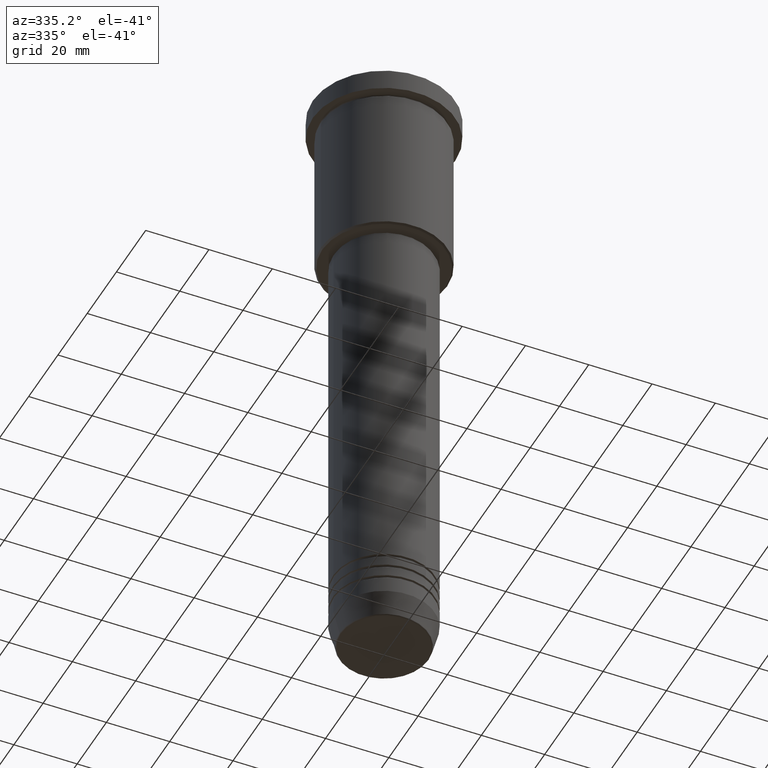
[diagram: clean part render]
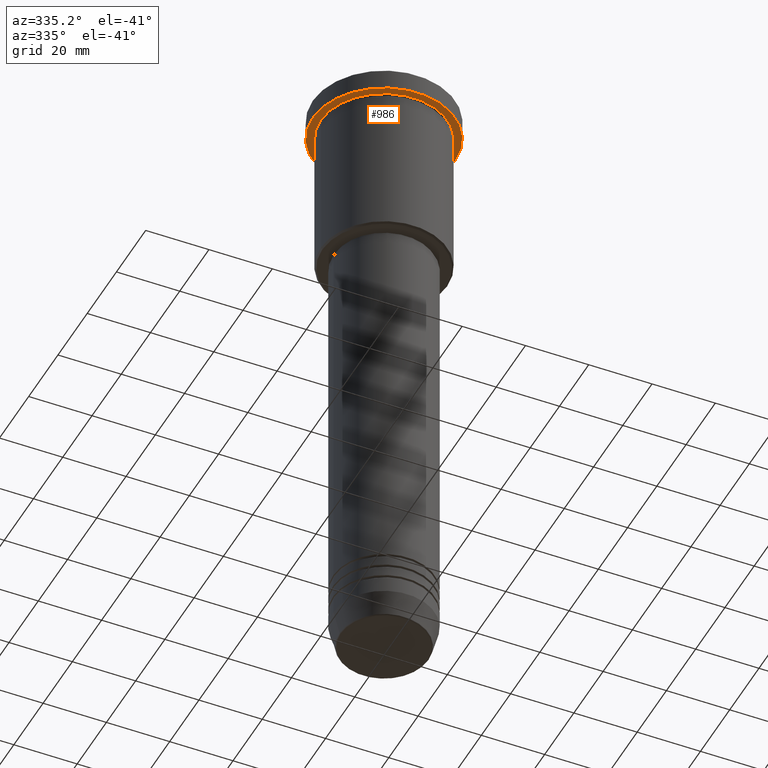
[diagram: same view with one face highlighted and labeled with its STEP entity id]
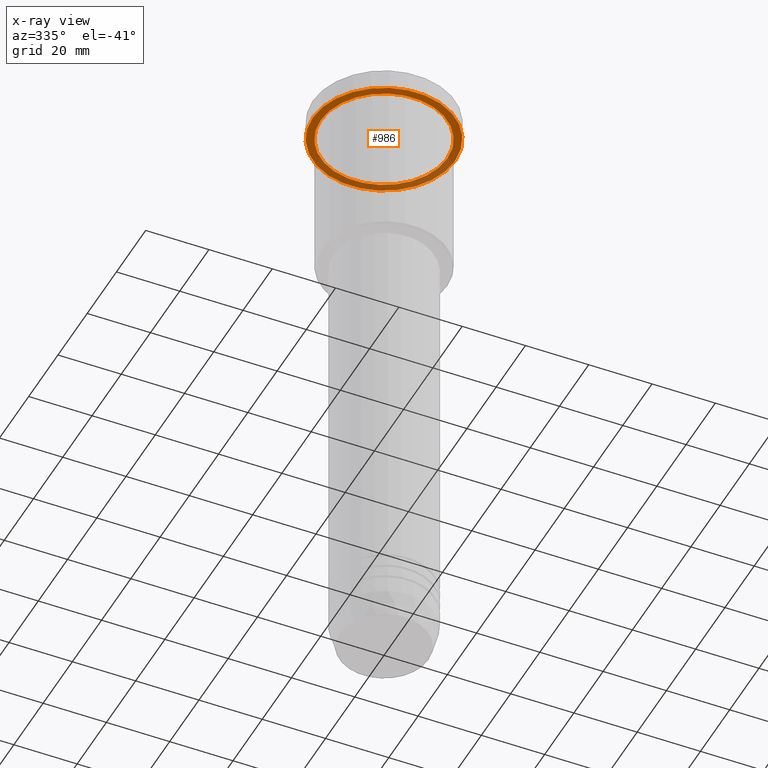
[diagram: x-ray of the same camera — body ghosted, the highlighted face saturated]
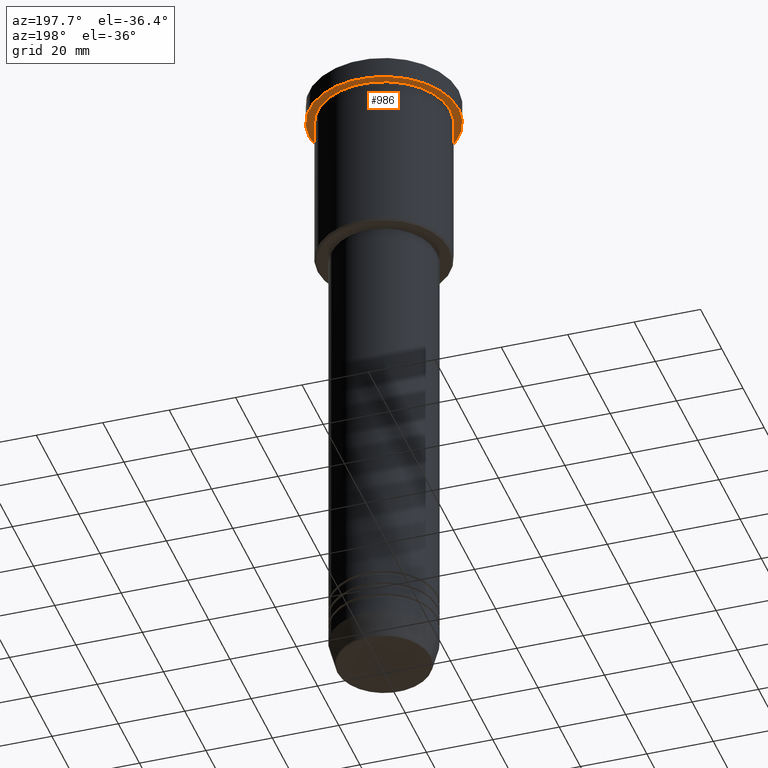
[diagram: same view with one face highlighted and labeled with its STEP entity id]
A machine part, auxiliary view. The second image highlights one B-rep face of the part: STEP entity #986.
The next image is the same camera in x-ray: the body ghosted, the highlighted face saturated — about 36% of this face is hidden behind the body in this view.
A second angle (auxiliary view) of the same face is appended — the face is thin or edge-on in the first view.
In plain terms, the highlighted planar face has unit normal (0, 0, -1).
Its self-contained STEP definition (entity closure, byte-faithful):
#21 = ORIENTED_EDGE ( 'NONE', *, *, #1089, .T. ) ;
#61 = AXIS2_PLACEMENT_3D ( 'NONE', #523, #619, #519 ) ;
#63 = VERTEX_POINT ( 'NONE', #74 ) ;
#65 = EDGE_CURVE ( 'NONE', #174, #63, #155, .T. ) ;
#70 = DIRECTION ( 'NONE',  ( 1.000000000000000000, 0.000000000000000000, 0.000000000000000000 ) ) ;
#74 = CARTESIAN_POINT ( 'NONE',  ( 22.50000000000000000, 0.000000000000000000, -6.999999999999995559 ) ) ;
#78 = EDGE_CURVE ( 'NONE', #63, #174, #728, .T. ) ;
#92 = CARTESIAN_POINT ( 'NONE',  ( -20.00000000000000000, 0.000000000000000000, -6.999999999999995559 ) ) ;
#107 = CARTESIAN_POINT ( 'NONE',  ( 0.000000000000000000, 0.000000000000000000, -6.999999999999995559 ) ) ;
#155 = CIRCLE ( 'NONE', #61, 22.50000000000000000 ) ;
#166 = ORIENTED_EDGE ( 'NONE', *, *, #397, .T. ) ;
#174 = VERTEX_POINT ( 'NONE', #1122 ) ;
#219 = DIRECTION ( 'NONE',  ( -0.000000000000000000, -0.000000000000000000, 1.000000000000000000 ) ) ;
#237 = VERTEX_POINT ( 'NONE', #92 ) ;
#291 = ORIENTED_EDGE ( 'NONE', *, *, #65, .F. ) ;
#322 = CIRCLE ( 'NONE', #881, 20.00000000000000000 ) ;
#338 = PLANE ( 'NONE',  #1114 ) ;
#344 = AXIS2_PLACEMENT_3D ( 'NONE', #107, #644, #1092 ) ;
#350 = DIRECTION ( 'NONE',  ( -0.000000000000000000, -0.000000000000000000, 1.000000000000000000 ) ) ;
#397 = EDGE_CURVE ( 'NONE', #237, #1120, #322, .T. ) ;
#415 = FACE_OUTER_BOUND ( 'NONE', #736, .T. ) ;
#514 = CIRCLE ( 'NONE', #344, 20.00000000000000000 ) ;
#519 = DIRECTION ( 'NONE',  ( 1.000000000000000000, 0.000000000000000000, 0.000000000000000000 ) ) ;
#523 = CARTESIAN_POINT ( 'NONE',  ( 0.000000000000000000, 0.000000000000000000, -6.999999999999995559 ) ) ;
#540 = CARTESIAN_POINT ( 'NONE',  ( 20.00000000000000000, 2.449293598294706513E-15, -6.999999999999995559 ) ) ;
#597 = FACE_BOUND ( 'NONE', #839, .T. ) ;
#619 = DIRECTION ( 'NONE',  ( -0.000000000000000000, -0.000000000000000000, 1.000000000000000000 ) ) ;
#644 = DIRECTION ( 'NONE',  ( -0.000000000000000000, -0.000000000000000000, 1.000000000000000000 ) ) ;
#705 = DIRECTION ( 'NONE',  ( -1.000000000000000000, 0.000000000000000000, -0.000000000000000000 ) ) ;
#709 = AXIS2_PLACEMENT_3D ( 'NONE', #889, #350, #70 ) ;
#713 = CARTESIAN_POINT ( 'NONE',  ( 0.000000000000000000, 22.50000000000000000, -6.999999999999995559 ) ) ;
#728 = CIRCLE ( 'NONE', #709, 22.50000000000000000 ) ;
#736 = EDGE_LOOP ( 'NONE', ( #777, #291 ) ) ;
#759 = DIRECTION ( 'NONE',  ( -1.000000000000000000, 0.000000000000000000, 0.000000000000000000 ) ) ;
#777 = ORIENTED_EDGE ( 'NONE', *, *, #78, .F. ) ;
#839 = EDGE_LOOP ( 'NONE', ( #166, #21 ) ) ;
#881 = AXIS2_PLACEMENT_3D ( 'NONE', #1045, #219, #759 ) ;
#889 = CARTESIAN_POINT ( 'NONE',  ( 0.000000000000000000, 0.000000000000000000, -6.999999999999995559 ) ) ;
#986 = ADVANCED_FACE ( 'NONE', ( #597, #415 ), #338, .T. ) ;
#1045 = CARTESIAN_POINT ( 'NONE',  ( 0.000000000000000000, 0.000000000000000000, -6.999999999999995559 ) ) ;
#1082 = DIRECTION ( 'NONE',  ( 0.000000000000000000, 0.000000000000000000, -1.000000000000000000 ) ) ;
#1089 = EDGE_CURVE ( 'NONE', #1120, #237, #514, .T. ) ;
#1092 = DIRECTION ( 'NONE',  ( -1.000000000000000000, 0.000000000000000000, 0.000000000000000000 ) ) ;
#1114 = AXIS2_PLACEMENT_3D ( 'NONE', #713, #1082, #705 ) ;
#1120 = VERTEX_POINT ( 'NONE', #540 ) ;
#1122 = CARTESIAN_POINT ( 'NONE',  ( -22.50000000000000000, 2.755455298081544778E-15, -6.999999999999995559 ) ) ;